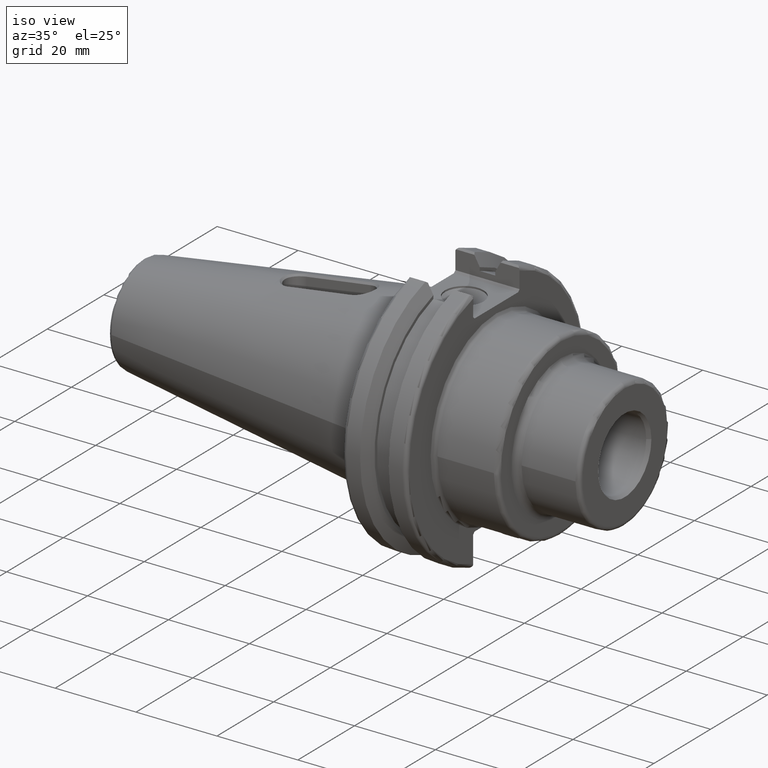
[diagram: clean part render]
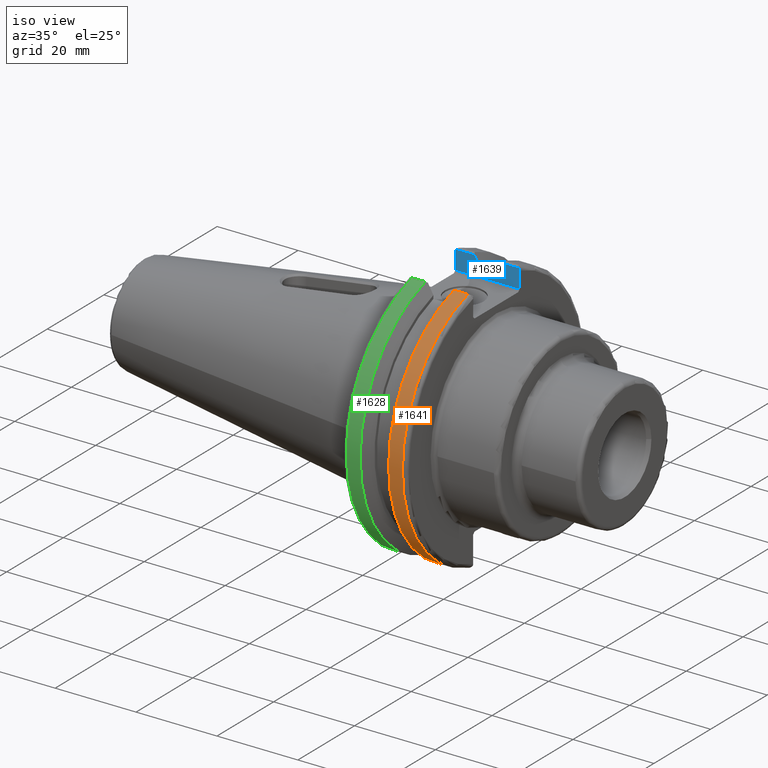
[diagram: same view with three faces highlighted in distinct colors, each labeled with its STEP entity id]
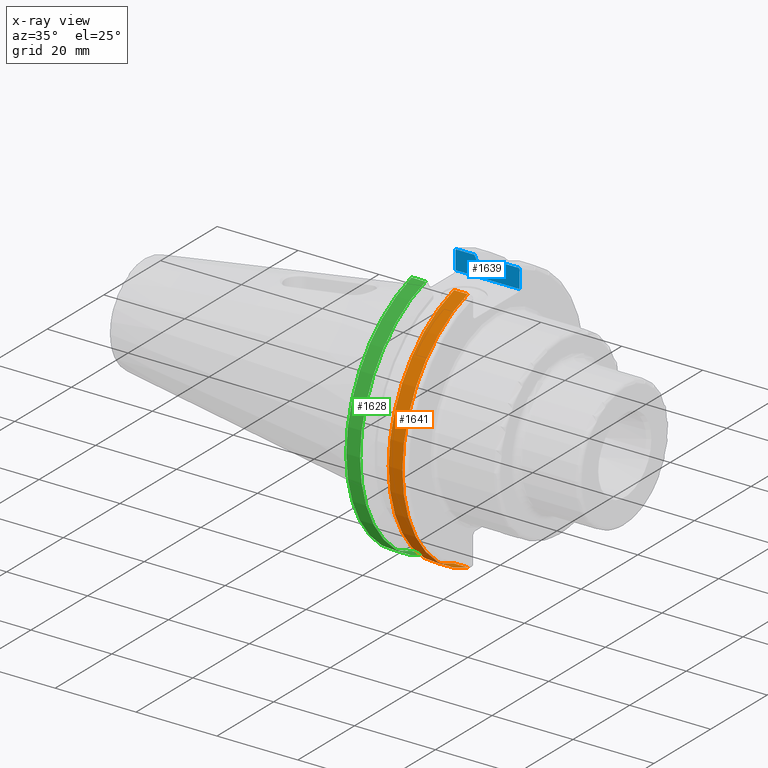
[diagram: x-ray of the same camera — body ghosted, the three highlighted faces saturated]
A machine part, iso view with three faces highlighted in distinct colors.
The next image is the same camera in x-ray (body ghosted, the three faces saturated) — at least one of them is partly hidden behind the body in this view.
Their STEP definitions:

[orange] entity #1641 — the highlighted cylindrical surface (partial cylindrical patch) has radius 31.75 mm, axis along (1, 0, 0).
#122=CYLINDRICAL_SURFACE('',#1789,31.75);
#249=FACE_OUTER_BOUND('',#346,.T.);
#346=EDGE_LOOP('',(#1463,#1464,#1465,#1466));
#468=LINE('',#3438,#574);
#469=LINE('',#3444,#575);
#574=VECTOR('',#2130,10.);
#575=VECTOR('',#2133,10.);
#626=CIRCLE('',#1765,31.75);
#633=CIRCLE('',#1790,31.75);
#770=VERTEX_POINT('',#3263);
#771=VERTEX_POINT('',#3272);
#802=VERTEX_POINT('',#3437);
#803=VERTEX_POINT('',#3443);
#984=EDGE_CURVE('',#770,#771,#626,.T.);
#1033=EDGE_CURVE('',#771,#802,#468,.T.);
#1035=EDGE_CURVE('',#803,#770,#469,.T.);
#1036=EDGE_CURVE('',#803,#802,#633,.T.);
#1463=ORIENTED_EDGE('',*,*,#984,.F.);
#1464=ORIENTED_EDGE('',*,*,#1035,.F.);
#1465=ORIENTED_EDGE('',*,*,#1036,.T.);
#1466=ORIENTED_EDGE('',*,*,#1033,.F.);
#1641=ADVANCED_FACE('',(#249),#122,.T.);
#1765=AXIS2_PLACEMENT_3D('',#3273,#2057,#2058);
#1789=AXIS2_PLACEMENT_3D('',#3442,#2131,#2132);
#1790=AXIS2_PLACEMENT_3D('',#3445,#2134,#2135);
#2057=DIRECTION('center_axis',(1.,0.,0.));
#2058=DIRECTION('ref_axis',(0.,-1.,1.60812264967664E-16));
#2130=DIRECTION('',(-1.,0.,0.));
#2131=DIRECTION('center_axis',(1.,0.,0.));
#2132=DIRECTION('ref_axis',(0.,-1.,1.22464679914735E-16));
#2133=DIRECTION('',(1.,0.,0.));
#2134=DIRECTION('center_axis',(1.,0.,0.));
#2135=DIRECTION('ref_axis',(0.,0.,-1.));
#3263=CARTESIAN_POINT('',(18.05,-8.67204822802685,30.5427254764662));
#3272=CARTESIAN_POINT('',(18.05,-8.67204822802685,-30.5427254764662));
#3273=CARTESIAN_POINT('Origin',(18.05,0.,0.));
#3437=CARTESIAN_POINT('',(14.6531667690756,-8.67204822802685,-30.5427254764662));
#3438=CARTESIAN_POINT('',(16.8515833845378,-8.67204822802685,-30.5427254764662));
#3442=CARTESIAN_POINT('Origin',(16.8515833845378,0.,0.));
#3443=CARTESIAN_POINT('',(14.6531667690756,-8.67204822802685,30.5427254764662));
#3444=CARTESIAN_POINT('',(16.8515833845378,-8.67204822802685,30.5427254764662));
#3445=CARTESIAN_POINT('Origin',(14.6531667690756,0.,0.));

[blue] entity #1639 — the highlighted planar face has unit normal (0, 1, 0).
#29=(
BOUNDED_CURVE()
B_SPLINE_CURVE(2,(#3422,#3423,#3424),.UNSPECIFIED.,.F.,.F.)
B_SPLINE_CURVE_WITH_KNOTS((3,3),(0.,0.276549142797025),.UNSPECIFIED.)
CURVE()
GEOMETRIC_REPRESENTATION_ITEM()
RATIONAL_B_SPLINE_CURVE((1.,1.0009520390361,1.0003161444491))
REPRESENTATION_ITEM('')
);
#30=(
BOUNDED_CURVE()
B_SPLINE_CURVE(2,(#3432,#3433,#3434),.UNSPECIFIED.,.F.,.F.)
B_SPLINE_CURVE_WITH_KNOTS((3,3),(0.0550586467389817,0.331607789535851),
 .UNSPECIFIED.)
CURVE()
GEOMETRIC_REPRESENTATION_ITEM()
RATIONAL_B_SPLINE_CURVE((1.00031614445175,1.00095203904407,1.))
REPRESENTATION_ITEM('')
);
#94=B_SPLINE_CURVE_WITH_KNOTS('',3,(#3184,#3185,#3186,#3187,#3188,#3189),
 .UNSPECIFIED.,.F.,.F.,(4,2,4),(0.0977210450333157,0.111963554372601,0.150804064902975),
 .UNSPECIFIED.);
#109=B_SPLINE_CURVE_WITH_KNOTS('',3,(#3389,#3390,#3391,#3392,#3393,#3394),
 .UNSPECIFIED.,.F.,.F.,(4,2,4),(0.452741154494498,0.491581665024872,0.505824174364157),
 .UNSPECIFIED.);
#170=PLANE('',#1787);
#247=FACE_OUTER_BOUND('',#344,.T.);
#344=EDGE_LOOP('',(#1447,#1448,#1449,#1450,#1451,#1452,#1453,#1454,#1455,
#1456,#1457,#1458));
#417=LINE('',#3129,#523);
#429=LINE('',#3166,#535);
#461=LINE('',#3416,#567);
#463=LINE('',#3420,#569);
#464=LINE('',#3426,#570);
#465=LINE('',#3428,#571);
#466=LINE('',#3430,#572);
#467=LINE('',#3435,#573);
#523=VECTOR('',#1999,10.);
#535=VECTOR('',#2027,10.);
#567=VECTOR('',#2119,10.);
#569=VECTOR('',#2123,10.);
#570=VECTOR('',#2124,10.);
#571=VECTOR('',#2125,10.);
#572=VECTOR('',#2126,10.);
#573=VECTOR('',#2127,10.);
#731=VERTEX_POINT('',#3126);
#732=VERTEX_POINT('',#3128);
#748=VERTEX_POINT('',#3163);
#749=VERTEX_POINT('',#3165);
#756=VERTEX_POINT('',#3183);
#790=VERTEX_POINT('',#3369);
#796=VERTEX_POINT('',#3419);
#797=VERTEX_POINT('',#3421);
#798=VERTEX_POINT('',#3425);
#799=VERTEX_POINT('',#3427);
#800=VERTEX_POINT('',#3429);
#801=VERTEX_POINT('',#3431);
#938=EDGE_CURVE('',#731,#732,#417,.T.);
#956=EDGE_CURVE('',#748,#749,#429,.T.);
#965=EDGE_CURVE('',#756,#731,#94,.T.);
#1015=EDGE_CURVE('',#749,#790,#109,.T.);
#1024=EDGE_CURVE('',#732,#748,#461,.T.);
#1026=EDGE_CURVE('',#796,#756,#463,.T.);
#1027=EDGE_CURVE('',#797,#796,#29,.T.);
#1028=EDGE_CURVE('',#798,#797,#464,.T.);
#1029=EDGE_CURVE('',#799,#798,#465,.T.);
#1030=EDGE_CURVE('',#800,#799,#466,.T.);
#1031=EDGE_CURVE('',#801,#800,#30,.T.);
#1032=EDGE_CURVE('',#790,#801,#467,.T.);
#1447=ORIENTED_EDGE('',*,*,#965,.F.);
#1448=ORIENTED_EDGE('',*,*,#1026,.F.);
#1449=ORIENTED_EDGE('',*,*,#1027,.F.);
#1450=ORIENTED_EDGE('',*,*,#1028,.F.);
#1451=ORIENTED_EDGE('',*,*,#1029,.F.);
#1452=ORIENTED_EDGE('',*,*,#1030,.F.);
#1453=ORIENTED_EDGE('',*,*,#1031,.F.);
#1454=ORIENTED_EDGE('',*,*,#1032,.F.);
#1455=ORIENTED_EDGE('',*,*,#1015,.F.);
#1456=ORIENTED_EDGE('',*,*,#956,.F.);
#1457=ORIENTED_EDGE('',*,*,#1024,.F.);
#1458=ORIENTED_EDGE('',*,*,#938,.F.);
#1639=ADVANCED_FACE('',(#247),#170,.F.);
#1787=AXIS2_PLACEMENT_3D('',#3418,#2121,#2122);
#1999=DIRECTION('',(0.,0.,-1.));
#2027=DIRECTION('',(0.,0.,1.));
#2119=DIRECTION('',(-1.,0.,0.));
#2121=DIRECTION('center_axis',(0.,1.,0.));
#2122=DIRECTION('ref_axis',(-1.,0.,0.));
#2123=DIRECTION('',(1.,0.,0.));
#2124=DIRECTION('',(0.,0.,1.));
#2125=DIRECTION('',(1.,0.,0.));
#2126=DIRECTION('',(0.,0.,-1.));
#2127=DIRECTION('',(1.,0.,0.));
#3126=CARTESIAN_POINT('',(19.05,8.19,29.6392712461019));
#3128=CARTESIAN_POINT('',(19.05,8.19,25.5));
#3129=CARTESIAN_POINT('',(19.05,8.19,12.5));
#3163=CARTESIAN_POINT('',(3.175,8.19,25.5));
#3165=CARTESIAN_POINT('',(3.175,8.19,29.6392712461019));
#3166=CARTESIAN_POINT('',(3.175,8.19,12.5));
#3183=CARTESIAN_POINT('',(18.9058722749097,8.19,30.1755016258903));
#3184=CARTESIAN_POINT('Ctrl Pts',(18.9058722749097,8.19,30.1755016258903));
#3185=CARTESIAN_POINT('Ctrl Pts',(18.9318163728133,8.19,30.131014531546));
#3186=CARTESIAN_POINT('Ctrl Pts',(18.9539643471756,8.19,30.0852355256475));
#3187=CARTESIAN_POINT('Ctrl Pts',(19.020485567083,8.19,29.9212724384851));
#3188=CARTESIAN_POINT('Ctrl Pts',(19.05,8.19,29.7687396145364));
#3189=CARTESIAN_POINT('Ctrl Pts',(19.05,8.19,29.6392712461019));
#3369=CARTESIAN_POINT('',(3.31912772509028,8.19,30.1755016258903));
#3389=CARTESIAN_POINT('Ctrl Pts',(3.175,8.19,29.6392712461018));
#3390=CARTESIAN_POINT('Ctrl Pts',(3.175,8.19,29.7687396145364));
#3391=CARTESIAN_POINT('Ctrl Pts',(3.20451443291695,8.19,29.9212724384851));
#3392=CARTESIAN_POINT('Ctrl Pts',(3.27103565282437,8.19,30.0852355256475));
#3393=CARTESIAN_POINT('Ctrl Pts',(3.29318362718666,8.19,30.131014531546));
#3394=CARTESIAN_POINT('Ctrl Pts',(3.31912772509028,8.19,30.1755016258903));
#3416=CARTESIAN_POINT('',(17.87875,8.19,25.5));
#3418=CARTESIAN_POINT('Origin',(20.05,8.19,25.));
#3419=CARTESIAN_POINT('',(14.3744146964874,8.19,30.1755016258903));
#3420=CARTESIAN_POINT('',(16.8515833845378,8.19,30.1755016258903));
#3421=CARTESIAN_POINT('',(13.042,8.19,27.7771386827498));
#3422=CARTESIAN_POINT('Ctrl Pts',(13.042,8.19,27.7771386827498));
#3423=CARTESIAN_POINT('Ctrl Pts',(13.6806364384667,8.19,28.9303689539537));
#3424=CARTESIAN_POINT('Ctrl Pts',(14.3744146964874,8.19,30.1755016258903));
#3425=CARTESIAN_POINT('',(13.042,8.19,26.932255754021));
#3426=CARTESIAN_POINT('',(13.042,8.19,12.5));
#3427=CARTESIAN_POINT('',(9.212,8.19,26.932255754021));
#3428=CARTESIAN_POINT('',(11.127,8.19,26.932255754021));
#3429=CARTESIAN_POINT('',(9.212,8.19,27.7771386827498));
#3430=CARTESIAN_POINT('',(9.212,8.19,12.5));
#3431=CARTESIAN_POINT('',(7.87958530351255,8.19,30.1755016258903));
#3432=CARTESIAN_POINT('Ctrl Pts',(7.87958530351255,8.19,30.1755016258903));
#3433=CARTESIAN_POINT('Ctrl Pts',(8.57336356152574,8.19,28.9303689539672));
#3434=CARTESIAN_POINT('Ctrl Pts',(9.212,8.19,27.7771386827498));
#3435=CARTESIAN_POINT('',(5.38791661546218,8.19,30.1755016258903));

[green] entity #1628 — the highlighted cylindrical surface (partial cylindrical patch) has radius 31.75 mm, axis along (1, 0, 0).
#121=CYLINDRICAL_SURFACE('',#1771,31.75);
#236=FACE_OUTER_BOUND('',#332,.T.);
#332=EDGE_LOOP('',(#1399,#1400,#1401,#1402));
#455=LINE('',#3356,#561);
#456=LINE('',#3362,#562);
#561=VECTOR('',#2081,10.);
#562=VECTOR('',#2084,10.);
#627=CIRCLE('',#1769,31.75);
#628=CIRCLE('',#1772,31.75);
#786=VERTEX_POINT('',#3335);
#787=VERTEX_POINT('',#3344);
#788=VERTEX_POINT('',#3355);
#789=VERTEX_POINT('',#3361);
#1005=EDGE_CURVE('',#786,#787,#627,.T.);
#1007=EDGE_CURVE('',#787,#788,#455,.T.);
#1009=EDGE_CURVE('',#789,#786,#456,.T.);
#1010=EDGE_CURVE('',#788,#789,#628,.T.);
#1399=ORIENTED_EDGE('',*,*,#1005,.F.);
#1400=ORIENTED_EDGE('',*,*,#1009,.F.);
#1401=ORIENTED_EDGE('',*,*,#1010,.F.);
#1402=ORIENTED_EDGE('',*,*,#1007,.F.);
#1628=ADVANCED_FACE('',(#236),#121,.T.);
#1769=AXIS2_PLACEMENT_3D('',#3345,#2077,#2078);
#1771=AXIS2_PLACEMENT_3D('',#3360,#2082,#2083);
#1772=AXIS2_PLACEMENT_3D('',#3363,#2085,#2086);
#2077=DIRECTION('center_axis',(-1.,0.,0.));
#2078=DIRECTION('ref_axis',(0.,-1.,1.60812264967664E-16));
#2081=DIRECTION('',(1.,0.,0.));
#2082=DIRECTION('center_axis',(1.,0.,0.));
#2083=DIRECTION('ref_axis',(0.,-1.,1.22464679914735E-16));
#2084=DIRECTION('',(-1.,0.,0.));
#2085=DIRECTION('center_axis',(1.,0.,0.));
#2086=DIRECTION('ref_axis',(0.,0.,-1.));
#3335=CARTESIAN_POINT('',(4.175,-8.67204822802685,-30.5427254764662));
#3344=CARTESIAN_POINT('',(4.175,-8.67204822802685,30.5427254764662));
#3345=CARTESIAN_POINT('Origin',(4.175,0.,0.));
#3355=CARTESIAN_POINT('',(7.60083323092435,-8.67204822802685,30.5427254764662));
#3356=CARTESIAN_POINT('',(5.38791661546218,-8.67204822802685,30.5427254764662));
#3360=CARTESIAN_POINT('Origin',(5.38791661546218,0.,0.));
#3361=CARTESIAN_POINT('',(7.60083323092435,-8.67204822802685,-30.5427254764662));
#3362=CARTESIAN_POINT('',(5.38791661546218,-8.67204822802685,-30.5427254764662));
#3363=CARTESIAN_POINT('Origin',(7.60083323092435,0.,0.));